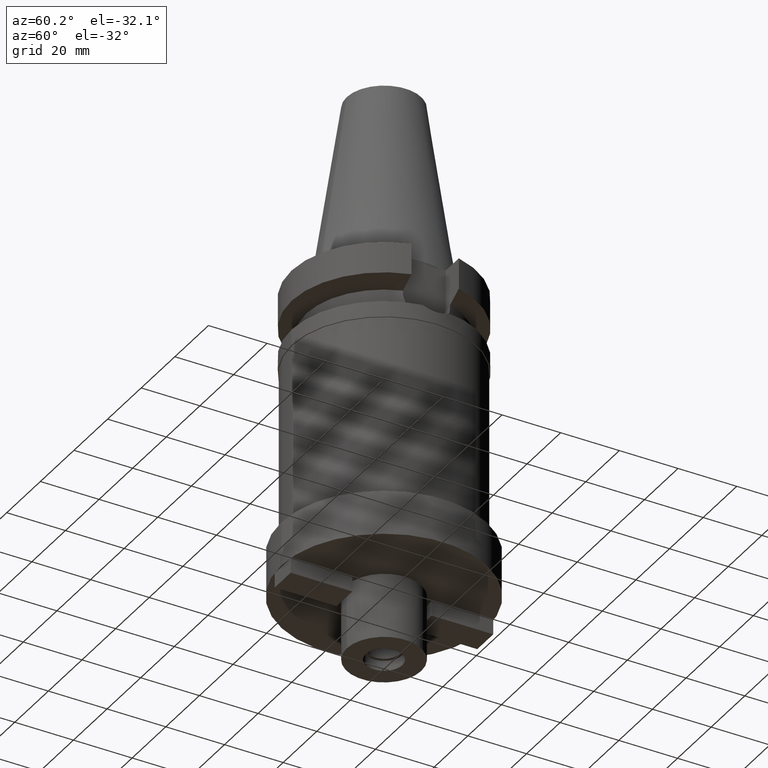
[diagram: clean part render]
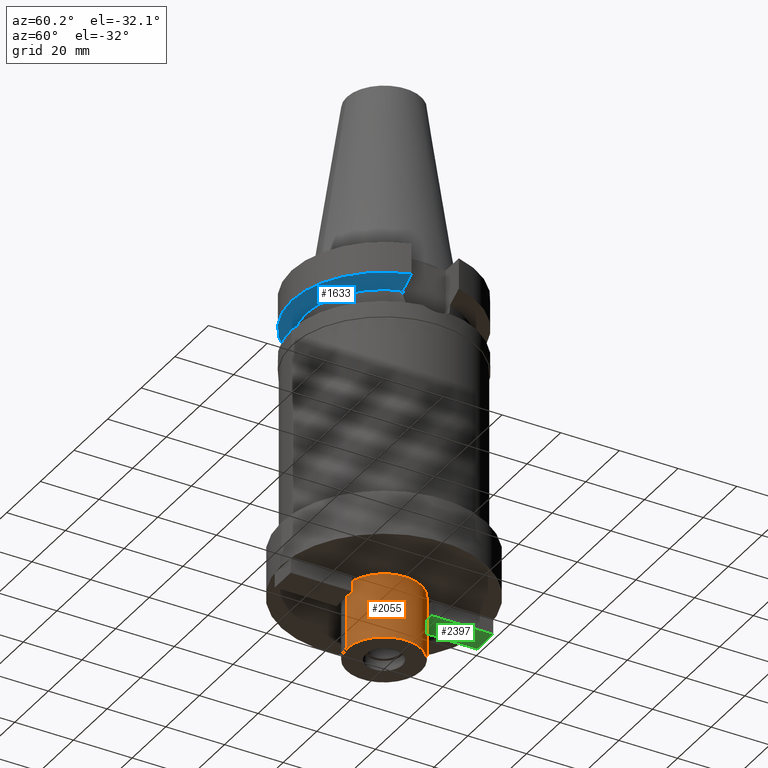
[diagram: same view with three faces highlighted in distinct colors, each labeled with its STEP entity id]
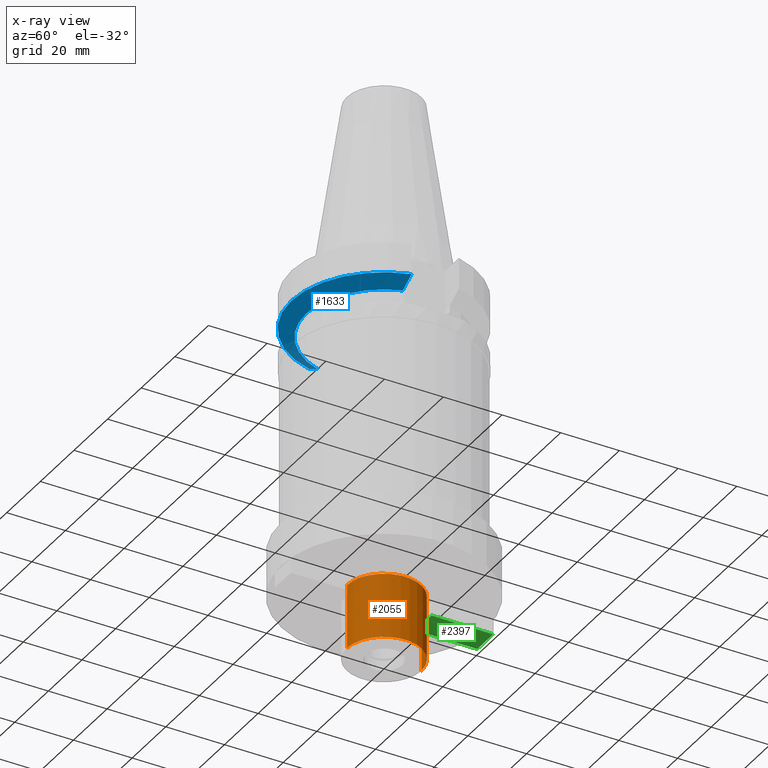
[diagram: x-ray of the same camera — body ghosted, the three highlighted faces saturated]
A machine part, auxiliary view with three faces highlighted in distinct colors.
The next image is the same camera in x-ray (body ghosted, the three faces saturated) — at least one of them is partly hidden behind the body in this view.
Their STEP definitions:

[orange] entity #2055 — the highlighted cylindrical surface (partial cylindrical patch) has radius 12.7 mm, axis along (0, 0, -1).
#772=CARTESIAN_POINT('',(0.E0,2.143376827868E-14,-1.05E2));
#773=DIRECTION('',(0.E0,0.E0,-1.E0));
#774=DIRECTION('',(0.E0,1.E0,0.E0));
#775=AXIS2_PLACEMENT_3D('',#772,#773,#774);
#808=DIRECTION('',(0.E0,0.E0,-1.E0));
#809=VECTOR('',#808,2.2E1);
#810=CARTESIAN_POINT('',(0.E0,-1.27E1,-1.05E2));
#811=LINE('',#810,#809);
#815=DIRECTION('',(0.E0,0.E0,-1.E0));
#816=VECTOR('',#815,2.2E1);
#817=CARTESIAN_POINT('',(0.E0,1.27E1,-1.05E2));
#818=LINE('',#817,#816);
#822=CARTESIAN_POINT('',(0.E0,2.143376827868E-14,-1.27E2));
#823=DIRECTION('',(0.E0,0.E0,1.E0));
#824=DIRECTION('',(0.E0,-1.E0,0.E0));
#825=AXIS2_PLACEMENT_3D('',#822,#823,#824);
#1304=CARTESIAN_POINT('',(0.E0,-1.27E1,-1.27E2));
#1305=CARTESIAN_POINT('',(0.E0,1.27E1,-1.27E2));
#1306=VERTEX_POINT('',#1304);
#1307=VERTEX_POINT('',#1305);
#1308=CARTESIAN_POINT('',(0.E0,1.27E1,-1.05E2));
#1309=VERTEX_POINT('',#1308);
#1310=CARTESIAN_POINT('',(0.E0,-1.27E1,-1.05E2));
#1311=VERTEX_POINT('',#1310);
#2043=CARTESIAN_POINT('',(0.E0,2.143376827868E-14,7.502E1));
#2044=DIRECTION('',(0.E0,0.E0,-1.E0));
#2045=DIRECTION('',(0.E0,-1.E0,0.E0));
#2046=AXIS2_PLACEMENT_3D('',#2043,#2044,#2045);
#2047=CYLINDRICAL_SURFACE('',#2046,1.27E1);
#2048=ORIENTED_EDGE('',*,*,#2033,.T.);
#2050=ORIENTED_EDGE('',*,*,#2049,.F.);
#2051=ORIENTED_EDGE('',*,*,#2036,.F.);
#2052=ORIENTED_EDGE('',*,*,#2003,.F.);
#2053=EDGE_LOOP('',(#2048,#2050,#2051,#2052));
#2054=FACE_OUTER_BOUND('',#2053,.F.);
#776=CIRCLE('',#775,1.27E1);
#826=CIRCLE('',#825,1.27E1);
#2003=EDGE_CURVE('',#1309,#1311,#776,.T.);
#2033=EDGE_CURVE('',#1309,#1307,#818,.T.);
#2036=EDGE_CURVE('',#1311,#1306,#811,.T.);
#2049=EDGE_CURVE('',#1306,#1307,#826,.T.);
#2055=ADVANCED_FACE('',(#2054),#2047,.T.);

[blue] entity #1633 — the highlighted conical surface has half-angle 60 deg.
#207=CARTESIAN_POINT('',(-3.045402291360E1,-8.049999278137E0,
-1.156551215434E1));
#208=CARTESIAN_POINT('',(-2.987645774139E1,-8.049999278137E0,
-1.188789690547E1));
#209=CARTESIAN_POINT('',(-2.872091199970E1,-8.049999725657E0,
-1.253193851327E1));
#210=CARTESIAN_POINT('',(-2.698538663567E1,-8.050002042997E0,
-1.349404339058E1));
#211=CARTESIAN_POINT('',(-2.582730530328E1,-8.049995415903E0,
-1.413348340809E1));
#212=CARTESIAN_POINT('',(-2.524772413118E1,-8.049995415903E0,
-1.445229202710E1));
#251=CARTESIAN_POINT('',(0.E0,1.065333950388E-14,-1.156550565267E1));
#252=DIRECTION('',(0.E0,0.E0,1.E0));
#253=DIRECTION('',(-9.667943721520E-1,-2.555555555555E-1,0.E0));
#254=AXIS2_PLACEMENT_3D('',#251,#252,#253);
#259=CARTESIAN_POINT('',(0.E0,1.065333950388E-14,-1.156550565267E1));
#260=DIRECTION('',(0.E0,0.E0,1.E0));
#261=DIRECTION('',(0.E0,-1.E0,0.E0));
#262=AXIS2_PLACEMENT_3D('',#259,#260,#261);
#267=CARTESIAN_POINT('',(0.E0,1.065333950388E-14,-1.445225699861E1));
#268=DIRECTION('',(0.E0,0.E0,-1.E0));
#269=DIRECTION('',(9.527442516822E-1,-3.037735849057E-1,0.E0));
#270=AXIS2_PLACEMENT_3D('',#267,#268,#269);
#275=CARTESIAN_POINT('',(0.E0,1.065333950388E-14,-1.445225699861E1));
#276=DIRECTION('',(0.E0,0.E0,-1.E0));
#277=DIRECTION('',(0.E0,-1.E0,0.E0));
#278=AXIS2_PLACEMENT_3D('',#275,#276,#277);
#297=CARTESIAN_POINT('',(2.524772216364E1,-8.050001586827E0,-1.445224487386E1));
#298=CARTESIAN_POINT('',(2.582727361361E1,-8.050001586827E0,-1.413345267855E1));
#299=CARTESIAN_POINT('',(2.698547395869E1,-8.049999811987E0,-1.349419207658E1));
#300=CARTESIAN_POINT('',(2.872100164043E1,-8.049998277804E0,-1.253209185345E1));
#301=CARTESIAN_POINT('',(2.987642830972E1,-8.050004143799E0,-1.188786874760E1));
#302=CARTESIAN_POINT('',(3.045402162744E1,-8.050004143799E0,-1.156546832709E1));
#1387=CARTESIAN_POINT('',(-2.524772413118E1,-8.049995415903E0,
-1.445229202710E1));
#1388=VERTEX_POINT('',#1387);
#1389=CARTESIAN_POINT('',(2.524772266958E1,-8.05E0,-1.445225699861E1));
#1390=CARTESIAN_POINT('',(0.E0,-2.65E1,-1.445225699861E1));
#1391=VERTEX_POINT('',#1389);
#1392=VERTEX_POINT('',#1390);
#1403=CARTESIAN_POINT('',(-3.045402291360E1,-8.049999278137E0,
-1.156551215434E1));
#1404=VERTEX_POINT('',#1403);
#1430=CARTESIAN_POINT('',(0.E0,-3.15E1,-1.156550565267E1));
#1431=CARTESIAN_POINT('',(3.045402272279E1,-8.049999999999E0,
-1.156550565267E1));
#1432=VERTEX_POINT('',#1430);
#1433=VERTEX_POINT('',#1431);
#1617=CARTESIAN_POINT('',(0.E0,1.065333950388E-14,-1.300888132564E1));
#1618=DIRECTION('',(0.E0,0.E0,1.E0));
#1619=DIRECTION('',(0.E0,1.E0,0.E0));
#1620=AXIS2_PLACEMENT_3D('',#1617,#1618,#1619);
#1621=CONICAL_SURFACE('',#1620,2.9E1,6.E1);
#1622=ORIENTED_EDGE('',*,*,#1589,.F.);
#1624=ORIENTED_EDGE('',*,*,#1623,.T.);
#1626=ORIENTED_EDGE('',*,*,#1625,.T.);
#1628=ORIENTED_EDGE('',*,*,#1627,.F.);
#1629=ORIENTED_EDGE('',*,*,#1602,.T.);
#1630=ORIENTED_EDGE('',*,*,#1600,.T.);
#1631=EDGE_LOOP('',(#1622,#1624,#1626,#1628,#1629,#1630));
#1632=FACE_OUTER_BOUND('',#1631,.F.);
#213=B_SPLINE_CURVE_WITH_KNOTS('',3,(#207,#208,#209,#210,#211,#212),
.UNSPECIFIED.,.F.,.F.,(4,1,1,4),(0.E0,3.333333333333E-1,6.666666666667E-1,1.E0),
.UNSPECIFIED.);
#255=CIRCLE('',#254,3.15E1);
#263=CIRCLE('',#262,3.15E1);
#271=CIRCLE('',#270,2.65E1);
#279=CIRCLE('',#278,2.65E1);
#303=B_SPLINE_CURVE_WITH_KNOTS('',3,(#297,#298,#299,#300,#301,#302),
.UNSPECIFIED.,.F.,.F.,(4,1,1,4),(0.E0,3.333333333333E-1,6.666666666667E-1,1.E0),
.UNSPECIFIED.);
#1589=EDGE_CURVE('',#1404,#1388,#213,.T.);
#1600=EDGE_CURVE('',#1392,#1388,#279,.T.);
#1602=EDGE_CURVE('',#1391,#1392,#271,.T.);
#1623=EDGE_CURVE('',#1404,#1432,#255,.T.);
#1625=EDGE_CURVE('',#1432,#1433,#263,.T.);
#1627=EDGE_CURVE('',#1391,#1433,#303,.T.);
#1633=ADVANCED_FACE('',(#1632),#1621,.T.);

[green] entity #2397 — the highlighted planar face has unit normal (0, 0, -1).
#1112=DIRECTION('',(-1.E0,0.E0,0.E0));
#1113=VECTOR('',#1112,9.5E0);
#1114=CARTESIAN_POINT('',(4.75E0,1.35E1,-1.1E2));
#1115=LINE('',#1114,#1113);
#1140=DIRECTION('',(0.E0,-1.E0,0.E0));
#1141=VECTOR('',#1140,2.1E1);
#1142=CARTESIAN_POINT('',(4.75E0,3.45E1,-1.1E2));
#1143=LINE('',#1142,#1141);
#1168=DIRECTION('',(0.E0,-1.E0,0.E0));
#1169=VECTOR('',#1168,2.1E1);
#1170=CARTESIAN_POINT('',(-4.75E0,3.45E1,-1.1E2));
#1171=LINE('',#1170,#1169);
#1175=DIRECTION('',(-1.E0,0.E0,0.E0));
#1176=VECTOR('',#1175,9.5E0);
#1177=CARTESIAN_POINT('',(4.75E0,3.45E1,-1.1E2));
#1178=LINE('',#1177,#1176);
#1437=CARTESIAN_POINT('',(-4.75E0,1.35E1,-1.1E2));
#1438=VERTEX_POINT('',#1437);
#1439=CARTESIAN_POINT('',(-4.75E0,3.45E1,-1.1E2));
#1440=VERTEX_POINT('',#1439);
#1441=CARTESIAN_POINT('',(4.75E0,1.35E1,-1.1E2));
#1442=VERTEX_POINT('',#1441);
#1443=CARTESIAN_POINT('',(4.75E0,3.45E1,-1.1E2));
#1444=VERTEX_POINT('',#1443);
#2386=CARTESIAN_POINT('',(-4.75E0,1.35E1,-1.1E2));
#2387=DIRECTION('',(0.E0,0.E0,-1.E0));
#2388=DIRECTION('',(0.E0,1.E0,0.E0));
#2389=AXIS2_PLACEMENT_3D('',#2386,#2387,#2388);
#2390=PLANE('',#2389);
#2391=ORIENTED_EDGE('',*,*,#2338,.T.);
#2392=ORIENTED_EDGE('',*,*,#2353,.F.);
#2393=ORIENTED_EDGE('',*,*,#2367,.F.);
#2394=ORIENTED_EDGE('',*,*,#2380,.T.);
#2395=EDGE_LOOP('',(#2391,#2392,#2393,#2394));
#2396=FACE_OUTER_BOUND('',#2395,.F.);
#2338=EDGE_CURVE('',#1440,#1438,#1171,.T.);
#2353=EDGE_CURVE('',#1442,#1438,#1115,.T.);
#2367=EDGE_CURVE('',#1444,#1442,#1143,.T.);
#2380=EDGE_CURVE('',#1444,#1440,#1178,.T.);
#2397=ADVANCED_FACE('',(#2396),#2390,.T.);